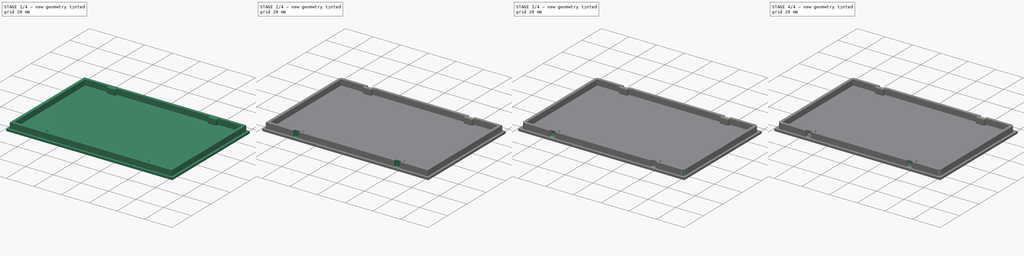
[diagram: build sequence overview — one tinted view per stage of 4, left to right]
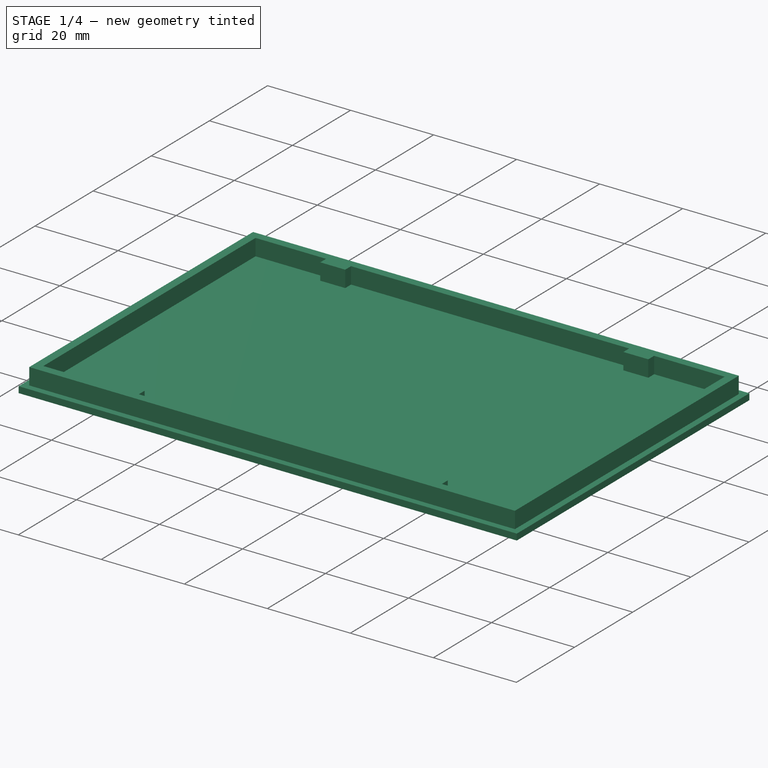
[diagram: stage 1 of 4 — iso view after this stage's code; geometry added in this stage tinted green]
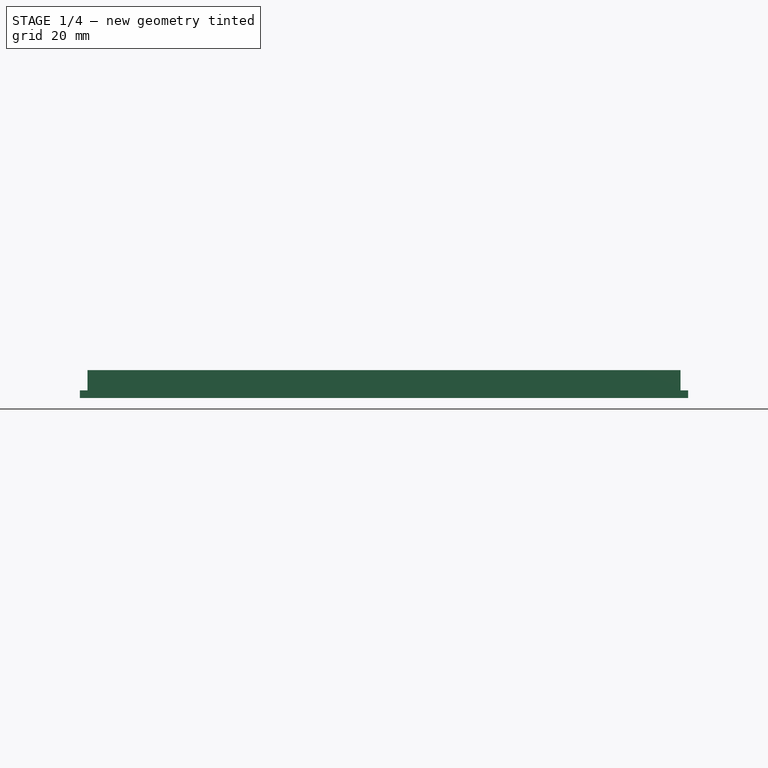
[diagram: stage 1 of 4 — front view after this stage's code; geometry added in this stage tinted green]
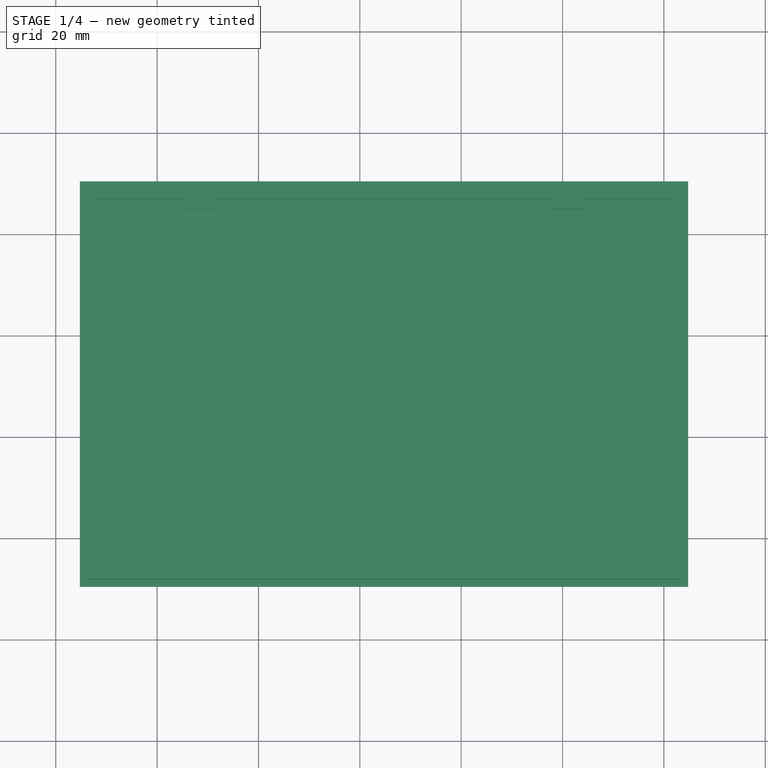
[diagram: stage 1 of 4 — top view after this stage's code; geometry added in this stage tinted green]
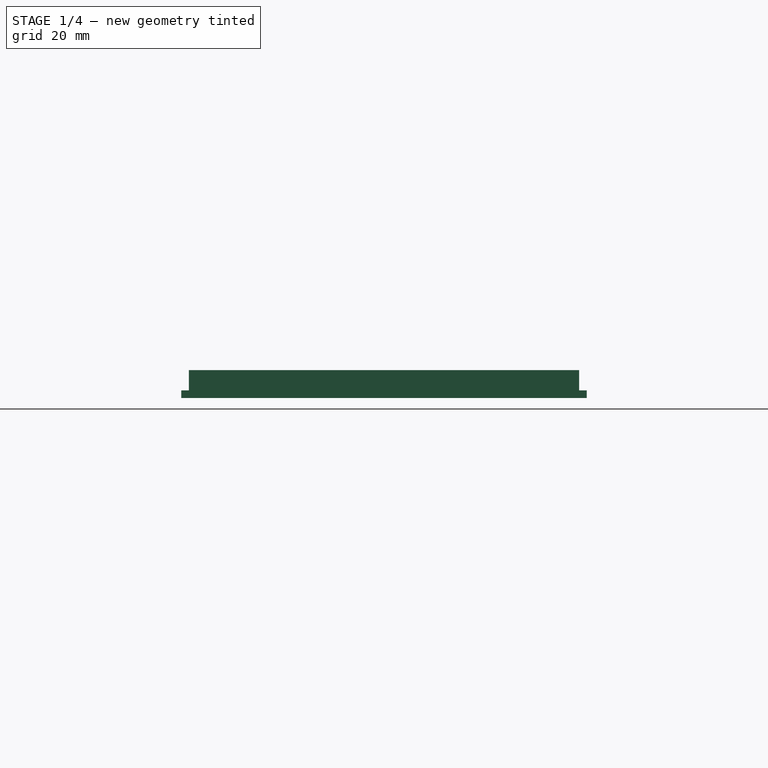
[diagram: stage 1 of 4 — right view after this stage's code; geometry added in this stage tinted green]
FCSTD DOCUMENT  (FreeCAD 0.19R24267 +99 (Git))
Label: tapa
License: All rights reserved
LicenseURL: http://en.wikipedia.org/wiki/All_rights_reserved
objects: Sketcher::SketchObject×9, PartDesign::Pocket×7, PartDesign::Fillet×4, PartDesign::Pad×2, PartDesign::Body×1
note: 36 computed .brp shape members not serialized (recipe doc carries the construction recipe); baked Part::Feature solids carry a one-line shape summary decoded from their .brp

FEATURE [Sketcher::SketchObject] Sketch
  FullyConstrained = false
  MapMode = 5
  Support = -> [XY_Plane]
  sketch-geometry (4):
    g0: LineSegment StartX=-35.2307 StartY=50.4497 StartZ=0 EndX=84.7693 EndY=50.4497 EndZ=0
    g1: LineSegment StartX=84.7693 StartY=50.4497 StartZ=0 EndX=84.7693 EndY=-29.5503 EndZ=0
    g2: LineSegment StartX=84.7693 StartY=-29.5503 StartZ=0 EndX=-35.2307 EndY=-29.5503 EndZ=0
    g3: LineSegment StartX=-35.2307 StartY=-29.5503 StartZ=0 EndX=-35.2307 EndY=50.4497 EndZ=0
  constraints (10):
    c: Coincident(g0,g1)
    c: Coincident(g1,g2)
    c: Coincident(g2,g3)
    c: Coincident(g3,g0)
    c: Horizontal(g0)
    c: Horizontal(g2)
    c: Vertical(g1)
    c: Vertical(g3)
    c: DistanceX(g2,g2) = 120
    c: DistanceY(g3,g3) = 80
FEATURE [PartDesign::Pad] Pad
  Direction = (1,1,1)
  Length = 1.5
  Length2 = 100
  Profile = -> Sketch
  Type = 0
FEATURE [Sketcher::SketchObject] Sketch001
  ExternalGeometry = -> [Pad]
  FullyConstrained = true
  MapMode = 5
  Placement = pos=(0,0,1.5) rot=(0,0,1;0rad)
  Support = -> [Pad]
  sketch-geometry (4):
    g0: LineSegment StartX=-33.7307 StartY=48.9497 StartZ=0 EndX=83.2693 EndY=48.9497 EndZ=0
    g1: LineSegment StartX=83.2693 StartY=48.9497 StartZ=0 EndX=83.2693 EndY=-28.0503 EndZ=0
    g2: LineSegment StartX=83.2693 StartY=-28.0503 StartZ=0 EndX=-33.7307 EndY=-28.0503 EndZ=0
    g3: LineSegment StartX=-33.7307 StartY=-28.0503 StartZ=0 EndX=-33.7307 EndY=48.9497 EndZ=0
  constraints (12):
    c: Coincident(g0,g1)
    c: Coincident(g1,g2)
    c: Coincident(g2,g3)
    c: Coincident(g3,g0)
    c: Horizontal(g0)
    c: Horizontal(g2)
    c: Vertical(g1)
    c: Vertical(g3)
    c: DistanceX(g-3,g0) = 1.5
    c: DistanceY(g0,g-3) = 1.5
    c: DistanceY(g-4,g1) = 1.5
    c: DistanceX(g1,g-4) = 1.5
FEATURE [PartDesign::Pad] Pad001
  BaseFeature = -> Pad
  Direction = (1,1,1)
  Length = 4
  Length2 = 100
  Profile = -> Sketch001
  Type = 0
FEATURE [Sketcher::SketchObject] Sketch002
  ExternalGeometry = -> [Pad001]
  FullyConstrained = false
  MapMode = 5
  Placement = pos=(0,0,5.5) rot=(0,0,1;0rad)
  Support = -> [Pad001]
  sketch-geometry (20):
    g0: LineSegment StartX=81.2693 StartY=46.9662 StartZ=0 EndX=81.2693 EndY=-26.0503 EndZ=0
    g1: LineSegment StartX=-31.7307 StartY=-26.0503 StartZ=0 EndX=-31.7307 EndY=46.9497 EndZ=0
    g2: LineSegment StartX=-14.7307 StartY=-24.0503 StartZ=0 EndX=-8.73069 EndY=-24.0503 EndZ=0
    g3: LineSegment StartX=-8.73069 StartY=-24.0503 StartZ=0 EndX=-8.73069 EndY=-26.0503 EndZ=0
    g4: LineSegment StartX=-14.7307 StartY=-26.0503 StartZ=0 EndX=-14.7307 EndY=-24.0503 EndZ=0
    g5: LineSegment StartX=58.2693 StartY=-24.0503 StartZ=0 EndX=64.2693 EndY=-24.0503 EndZ=0
    g6: LineSegment StartX=64.2693 StartY=-24.0503 StartZ=0 EndX=64.2693 EndY=-26.0503 EndZ=0
    g7: LineSegment StartX=58.2693 StartY=-26.0503 StartZ=0 EndX=58.2693 EndY=-24.0503 EndZ=0
    g8: LineSegment StartX=58.2693 StartY=46.9497 StartZ=0 EndX=58.2693 EndY=44.9662 EndZ=0
    g9: LineSegment StartX=58.2693 StartY=44.9662 StartZ=0 EndX=64.2693 EndY=44.9662 EndZ=0
    g10: LineSegment StartX=64.2693 StartY=44.9662 StartZ=0 EndX=64.2693 EndY=46.9662 EndZ=0
    g11: LineSegment StartX=-8.73069 StartY=46.9497 StartZ=0 EndX=-8.73069 EndY=44.9497 EndZ=0
    g12: LineSegment StartX=-8.73069 StartY=44.9497 StartZ=0 EndX=-14.7307 EndY=44.9497 EndZ=0
    g13: LineSegment StartX=-14.7307 StartY=44.9497 StartZ=0 EndX=-14.7307 EndY=46.9497 EndZ=0
    g14: LineSegment StartX=-31.7307 StartY=-26.0503 StartZ=0 EndX=-14.7307 EndY=-26.0503 EndZ=0
    g15: LineSegment StartX=-8.73069 StartY=-26.0503 StartZ=0 EndX=58.2693 EndY=-26.0503 EndZ=0
    g16: LineSegment StartX=64.2693 StartY=-26.0503 StartZ=0 EndX=81.2693 EndY=-26.0503 EndZ=0
    g17: LineSegment StartX=-31.7307 StartY=46.9497 StartZ=0 EndX=-14.7307 EndY=46.9497 EndZ=0
    g18: LineSegment StartX=-8.73069 StartY=46.9497 StartZ=0 EndX=58.2693 EndY=46.9497 EndZ=0
    g19: LineSegment StartX=64.2693 StartY=46.9662 StartZ=0 EndX=81.2693 EndY=46.9662 EndZ=0
  constraints (58):
    c: Vertical(g0)
    c: Vertical(g1)
    c: DistanceY(g1,g-3) = 2
    c: DistanceX(g-3,g1) = 2
    c: DistanceX(g0,g-4) = 2
    c: DistanceY(g-4,g0) = 2
    c: Coincident(g2,g3)
    c: Coincident(g4,g2)
    c: Horizontal(g2)
    c: Vertical(g3)
    c: Vertical(g4)
    c: DistanceY(g3,g3) = 2
    c: DistanceX(g2,g2) = 6
    c: Coincident(g5,g6)
    c: Coincident(g7,g5)
    c: Horizontal(g5)
    c: Vertical(g6)
    c: Vertical(g7)
    c: Equal(g3,g6) = 1.5
    c: Equal(g2,g5) = 5
    c: Coincident(g8,g9)
    c: Coincident(g9,g10)
    c: Horizontal(g9)
    c: Vertical(g8)
    c: Vertical(g10)
    c: Coincident(g11,g12)
    c: Coincident(g12,g13)
    c: Horizontal(g12)
    c: Vertical(g11)
    c: Vertical(g13)
    c: DistanceX(g-4,g4) = 19
    c: DistanceY(g1,g4) = 0
    c: DistanceX(g6,g-4) = 19
    c: DistanceY(g0,g6) = 0
    c: DistanceY(g10,g10) = 2
    c: DistanceX(g9,g9) = 6
    c: DistanceX(g10,g-3) = 19
    c: DistanceY(g10,g0) = 0
    c: DistanceY(g11,g11) = 2
    c: DistanceX(g12,g12) = 6
    c: DistanceX(g-3,g13) = 19
    c: DistanceY(g13,g1) = 0
    c: Coincident(g14,g1)
    c: Coincident(g15,g3)
    c: Coincident(g15,g7)
    c: Horizontal(g15)
    c: Coincident(g16,g6)
    c: Coincident(g16,g0)
    c: Coincident(g17,g1)
    c: Coincident(g17,g13)
    c: Coincident(g18,g11)
    c: Coincident(g18,g8)
    c: Horizontal(g18)
    c: Coincident(g19,g10)
    c: Coincident(g19,g0)
    c: Coincident(g14,g4)
    c: DistanceY(g-4,g7) = 2
    c: DistanceY(g8,g-3) = 2
FEATURE [PartDesign::Pocket] Pocket
  BaseFeature = -> Pad001
  Length = 4
  Length2 = 100
  Profile = -> Sketch002
  Type = 0
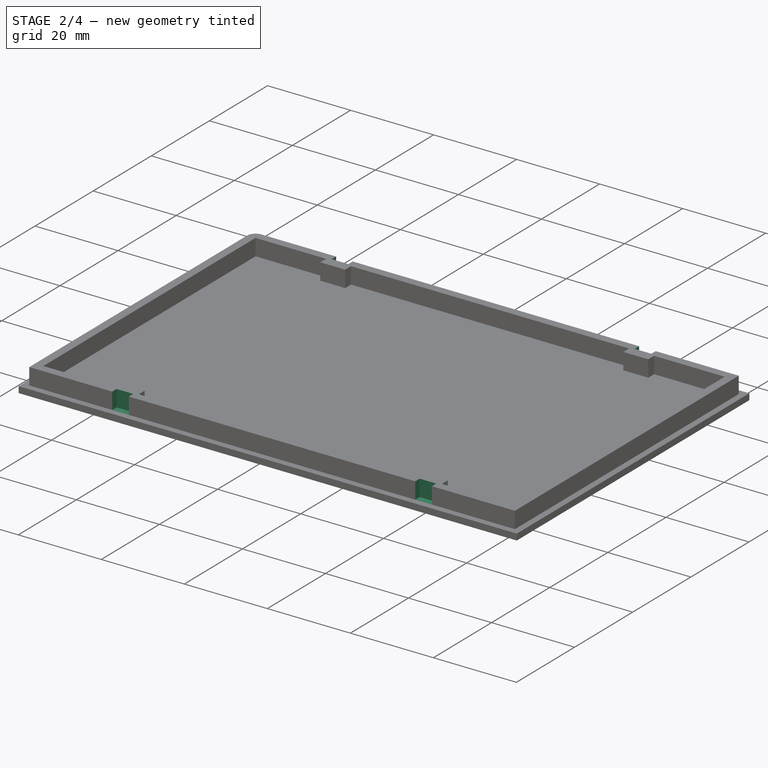
[diagram: stage 2 of 4 — iso view after this stage's code; geometry added in this stage tinted green]
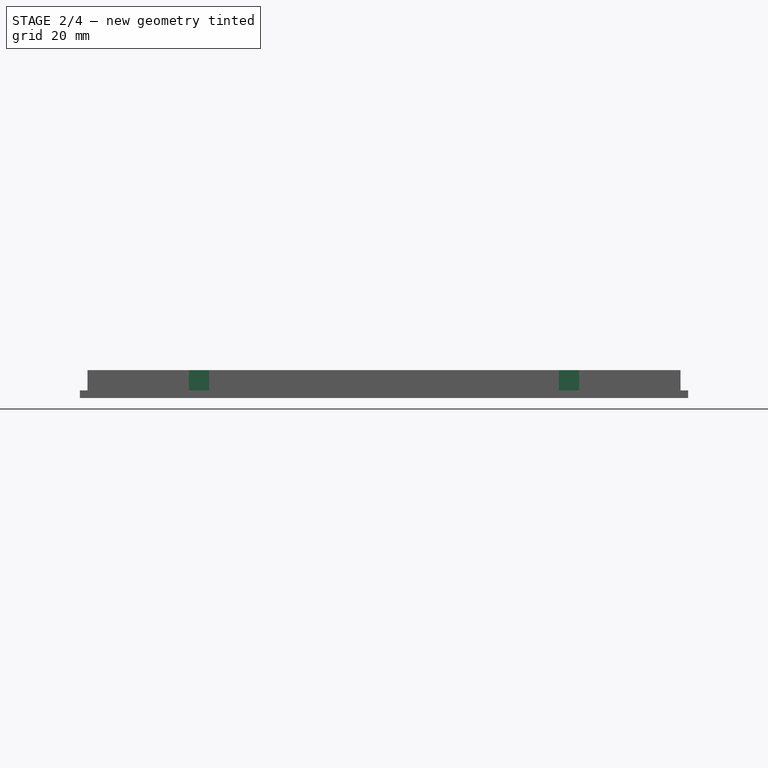
[diagram: stage 2 of 4 — front view after this stage's code; geometry added in this stage tinted green]
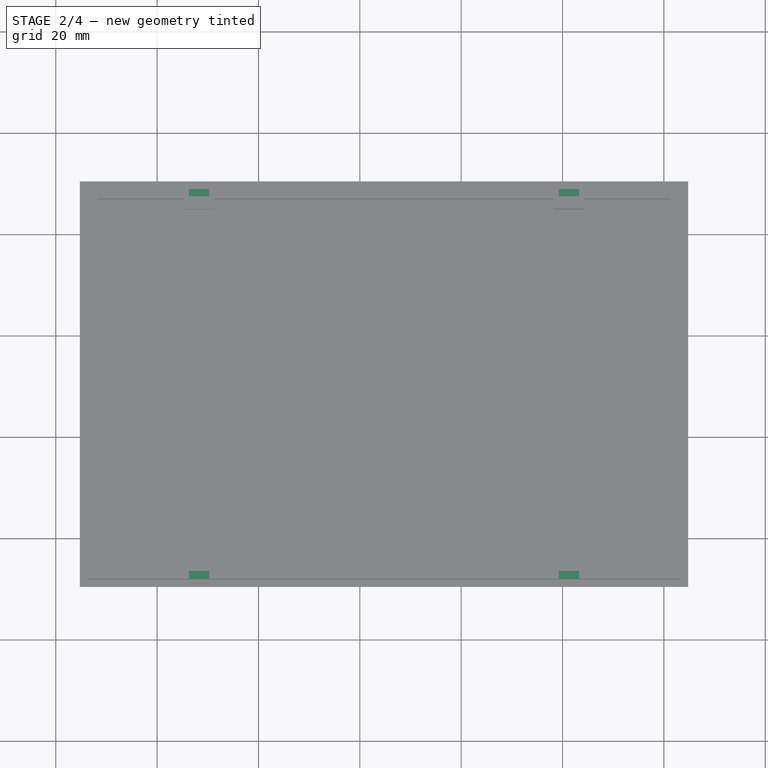
[diagram: stage 2 of 4 — top view after this stage's code; geometry added in this stage tinted green]
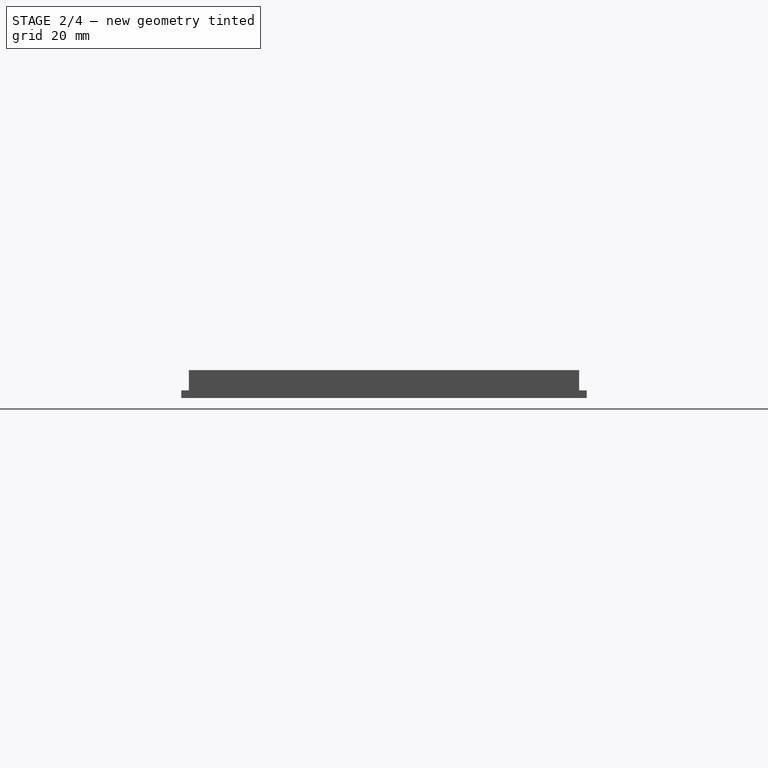
[diagram: stage 2 of 4 — right view after this stage's code; geometry added in this stage tinted green]
FEATURE [Sketcher::SketchObject] Sketch003
  ExternalGeometry = -> [Pocket]
  FullyConstrained = true
  MapMode = 5
  Placement = pos=(0,-28.0503,0) rot=(1,0,0;1.5708rad)
  Support = -> [Pocket]
  sketch-geometry (8):
    g0: LineSegment StartX=-13.7307 StartY=5.5 StartZ=0 EndX=-9.73069 EndY=5.5 EndZ=0
    g1: LineSegment StartX=-9.73069 StartY=5.5 StartZ=0 EndX=-9.73069 EndY=1.5 EndZ=0
    g2: LineSegment StartX=-9.73069 StartY=1.5 StartZ=0 EndX=-13.7307 EndY=1.5 EndZ=0
    g3: LineSegment StartX=-13.7307 StartY=1.5 StartZ=0 EndX=-13.7307 EndY=5.5 EndZ=0
    g4: LineSegment StartX=59.2693 StartY=5.5 StartZ=0 EndX=63.2693 EndY=5.5 EndZ=0
    g5: LineSegment StartX=63.2693 StartY=5.5 StartZ=0 EndX=63.2693 EndY=1.5 EndZ=0
    g6: LineSegment StartX=63.2693 StartY=1.5 StartZ=0 EndX=59.2693 EndY=1.5 EndZ=0
    g7: LineSegment StartX=59.2693 StartY=1.5 StartZ=0 EndX=59.2693 EndY=5.5 EndZ=0
  constraints (24):
    c: Coincident(g0,g1)
    c: Coincident(g1,g2)
    c: Coincident(g2,g3)
    c: Coincident(g3,g0)
    c: Horizontal(g0)
    c: Horizontal(g2)
    c: Vertical(g1)
    c: Vertical(g3)
    c: Coincident(g4,g5)
    c: Coincident(g5,g6)
    c: Coincident(g6,g7)
    c: Coincident(g7,g4)
    c: Horizontal(g4)
    c: Horizontal(g6)
    c: Vertical(g5)
    c: Vertical(g7)
    c: DistanceY(g1,g1) = 4
    c: DistanceX(g0,g0) = 4
    c: DistanceX(g-3,g2) = 20
    c: DistanceY(g-3,g2) = 0
    c: DistanceY(g5,g5) = 4
    c: DistanceX(g4,g4) = 4
    c: DistanceX(g5,g-4) = 20
    c: DistanceY(g-4,g5) = 0
FEATURE [PartDesign::Pocket] Pocket001
  BaseFeature = -> Pocket
  Length = 1.5
  Length2 = 100
  Profile = -> Sketch003
  Type = 0
FEATURE [Sketcher::SketchObject] Sketch004
  ExternalGeometry = -> [Pocket001]
  FullyConstrained = true
  MapMode = 5
  Placement = pos=(0,48.9497,0) rot=(0,0.707107,0.707107;3.14159rad)
  Support = -> [Pocket001]
  sketch-geometry (8):
    g0: LineSegment StartX=-63.2693 StartY=5.5 StartZ=0 EndX=-59.2693 EndY=5.5 EndZ=0
    g1: LineSegment StartX=-59.2693 StartY=5.5 StartZ=0 EndX=-59.2693 EndY=1.5 EndZ=0
    g2: LineSegment StartX=-59.2693 StartY=1.5 StartZ=0 EndX=-63.2693 EndY=1.5 EndZ=0
    g3: LineSegment StartX=-63.2693 StartY=1.5 StartZ=0 EndX=-63.2693 EndY=5.5 EndZ=0
    g4: LineSegment StartX=9.73069 StartY=5.5 StartZ=0 EndX=13.7307 EndY=5.5 EndZ=0
    g5: LineSegment StartX=13.7307 StartY=5.5 StartZ=0 EndX=13.7307 EndY=1.5 EndZ=0
    g6: LineSegment StartX=13.7307 StartY=1.5 StartZ=0 EndX=9.73069 EndY=1.5 EndZ=0
    g7: LineSegment StartX=9.73069 StartY=1.5 StartZ=0 EndX=9.73069 EndY=5.5 EndZ=0
  constraints (24):
    c: Coincident(g0,g1)
    c: Coincident(g1,g2)
    c: Coincident(g2,g3)
    c: Coincident(g3,g0)
    c: Horizontal(g0)
    c: Horizontal(g2)
    c: Vertical(g1)
    c: Vertical(g3)
    c: Coincident(g4,g5)
    c: Coincident(g5,g6)
    c: Coincident(g6,g7)
    c: Coincident(g7,g4)
    c: Horizontal(g4)
    c: Horizontal(g6)
    c: Vertical(g5)
    c: Vertical(g7)
    c: DistanceY(g1,g1) = 4
    c: DistanceX(g0,g0) = 4
    c: DistanceX(g-3,g2) = 20
    c: DistanceY(g-3,g2) = 0
    c: DistanceY(g5,g5) = 4
    c: DistanceX(g4,g4) = 4
    c: DistanceX(g5,g-4) = 20
    c: DistanceY(g-4,g5) = 0
FEATURE [PartDesign::Pocket] Pocket002
  BaseFeature = -> Pocket001
  Length = 1.5
  Length2 = 100
  Profile = -> Sketch004
  Type = 0
FEATURE [PartDesign::Fillet] Fillet
  Base = -> Pocket002 [Edge27]
  BaseFeature = -> Pocket002
  Radius = 2
  SupportTransform = false
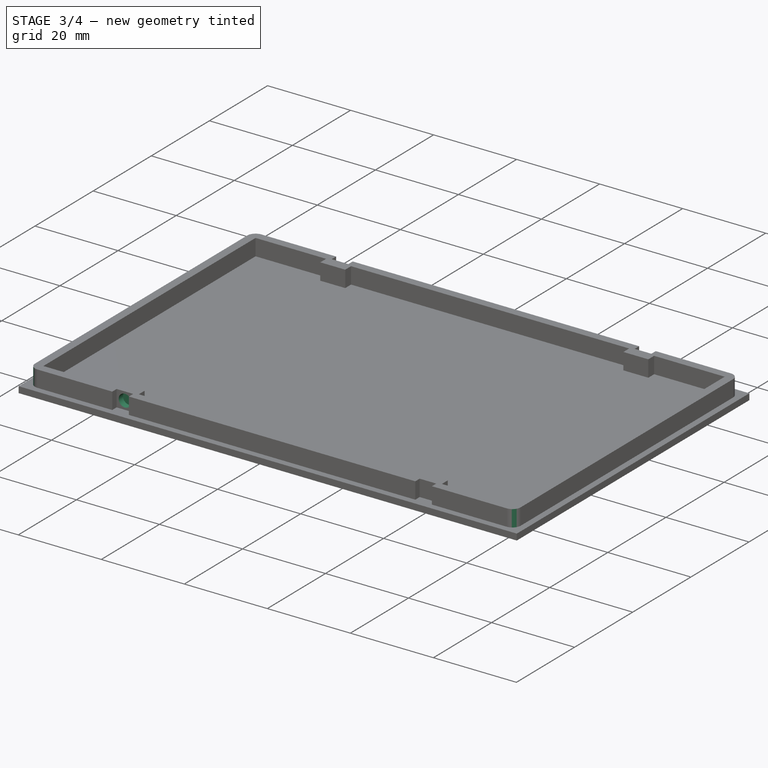
[diagram: stage 3 of 4 — iso view after this stage's code; geometry added in this stage tinted green]
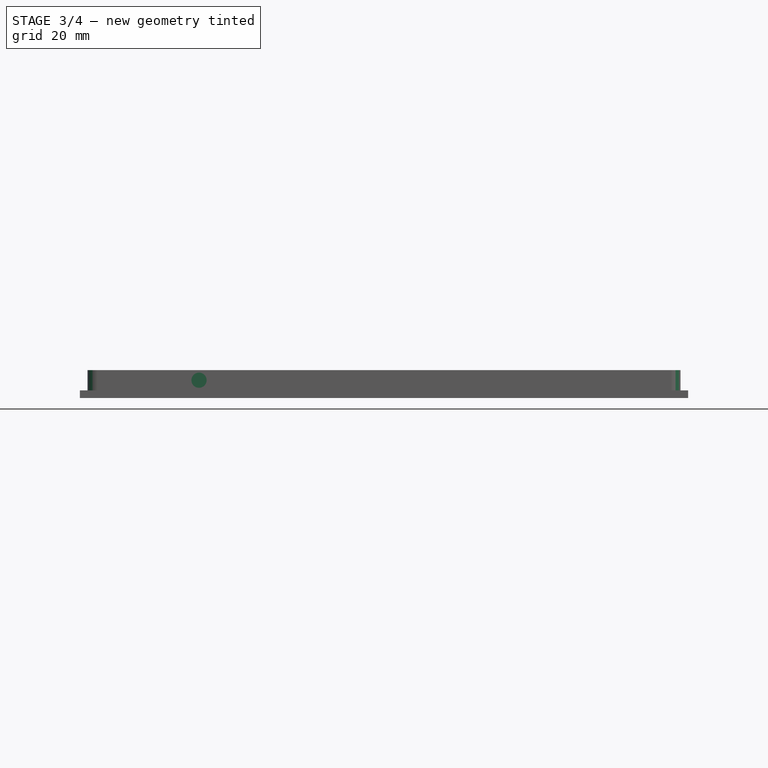
[diagram: stage 3 of 4 — front view after this stage's code; geometry added in this stage tinted green]
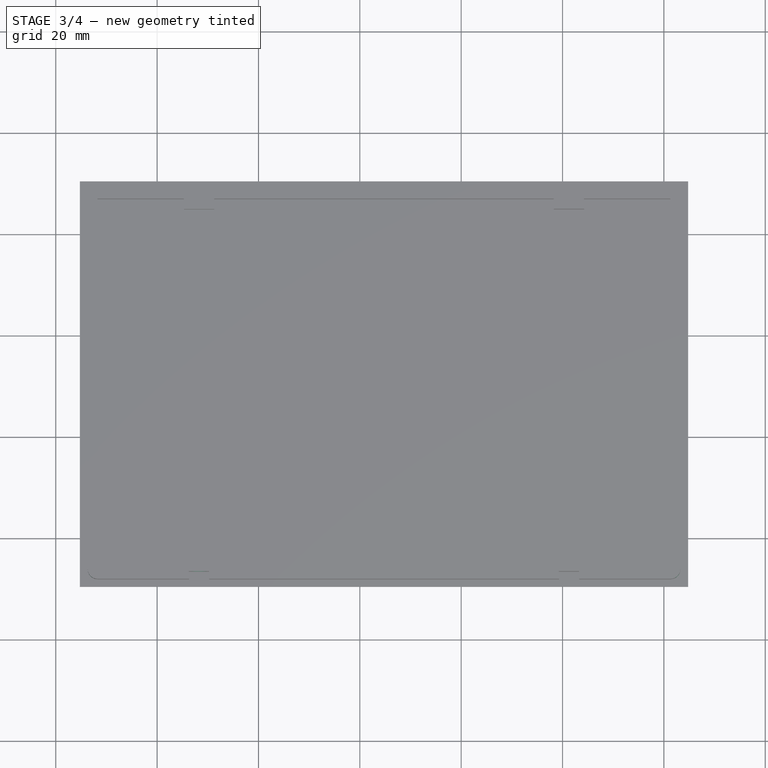
[diagram: stage 3 of 4 — top view after this stage's code; geometry added in this stage tinted green]
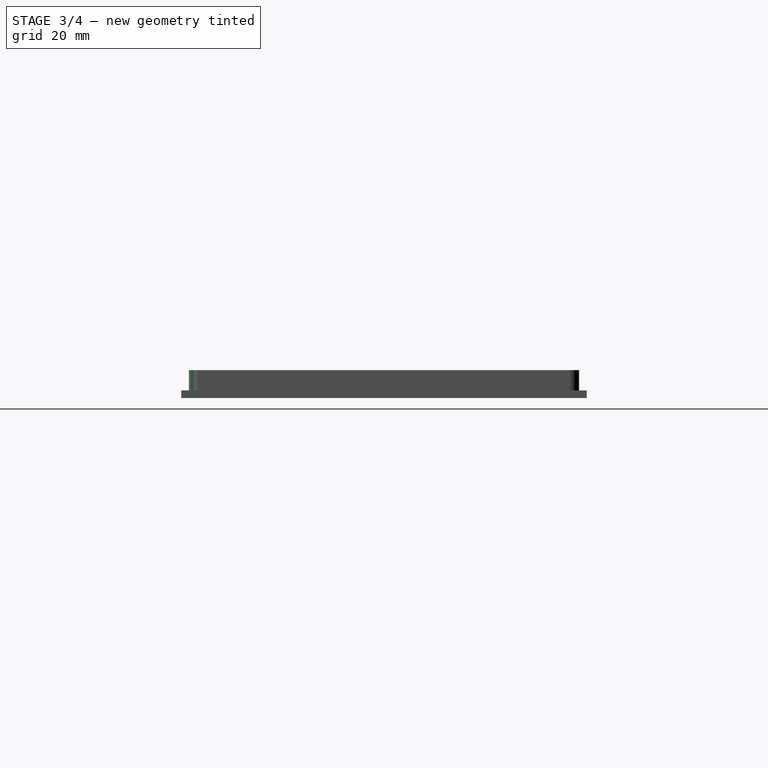
[diagram: stage 3 of 4 — right view after this stage's code; geometry added in this stage tinted green]
FEATURE [PartDesign::Fillet] Fillet001
  Base = -> Fillet [Edge39]
  BaseFeature = -> Fillet
  Radius = 2
  SupportTransform = false
FEATURE [PartDesign::Fillet] Fillet002
  Base = -> Fillet001 [Edge27]
  BaseFeature = -> Fillet001
  Radius = 2
  SupportTransform = false
FEATURE [PartDesign::Fillet] Fillet003
  Base = -> Fillet002 [Edge49]
  BaseFeature = -> Fillet002
  Radius = 2
  SupportTransform = false
FEATURE [Sketcher::SketchObject] Sketch005
  ExternalGeometry = -> [Fillet003]
  FullyConstrained = true
  MapMode = 5
  Placement = pos=(0,-26.5503,0) rot=(1,0,0;1.5708rad)
  Support = -> [Fillet003]
  sketch-geometry (1):
    g0: Circle CenterX=-11.7307 CenterY=3.5 CenterZ=0 NormalX=0 NormalY=0 NormalZ=1 AngleXU=0 Radius=1.5
  constraints (3):
    c: Diameter(g0) = 3
    c: DistanceX(g-4,g0) = 2
    c: DistanceY(g0,g-4) = 2
FEATURE [PartDesign::Pocket] Pocket003
  BaseFeature = -> Fillet003
  Length = 1.5
  Length2 = 100
  Profile = -> Sketch005
  Type = 0
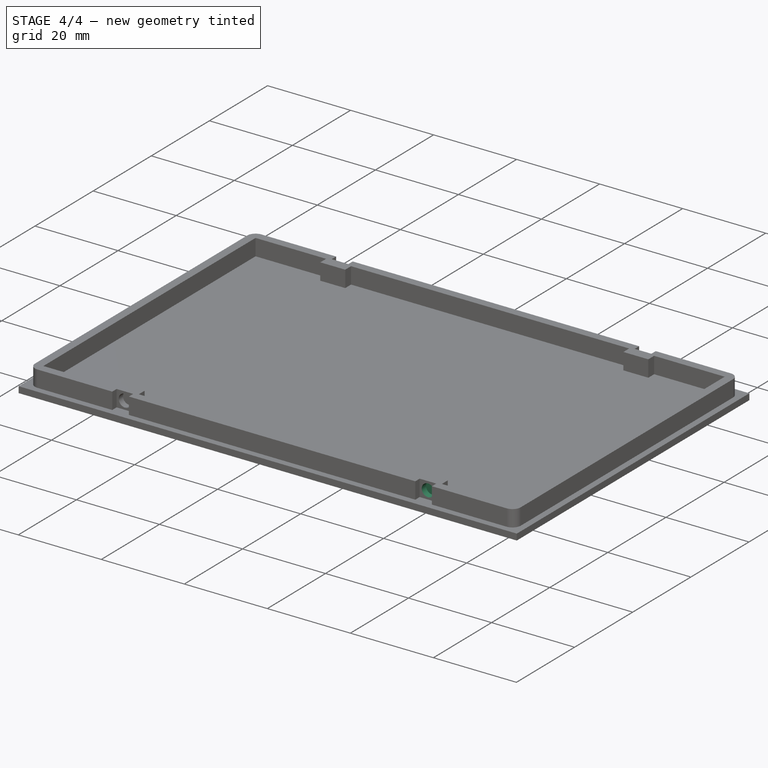
[diagram: stage 4 of 4 — iso view after this stage's code; geometry added in this stage tinted green]
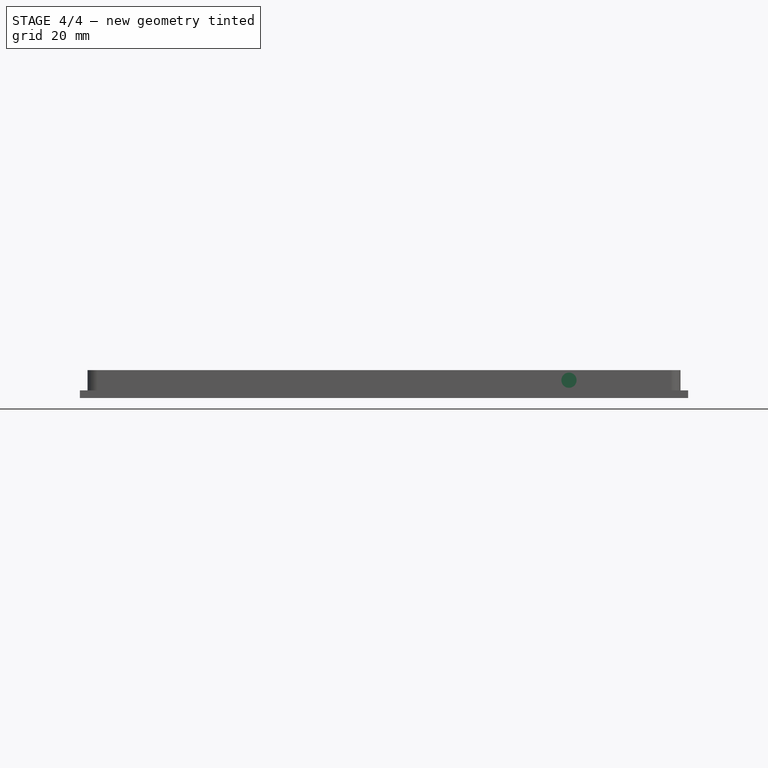
[diagram: stage 4 of 4 — front view after this stage's code; geometry added in this stage tinted green]
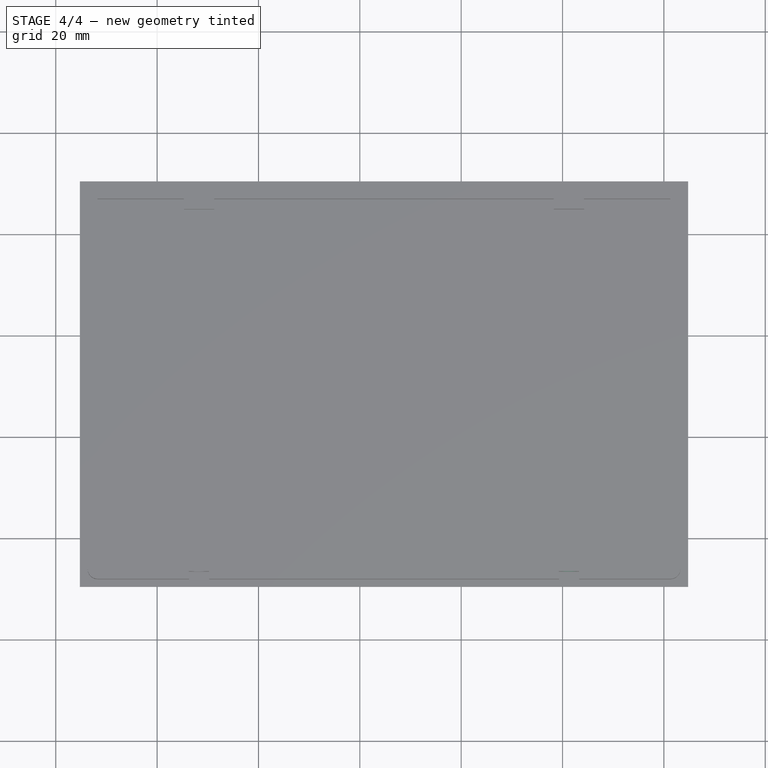
[diagram: stage 4 of 4 — top view after this stage's code; geometry added in this stage tinted green]
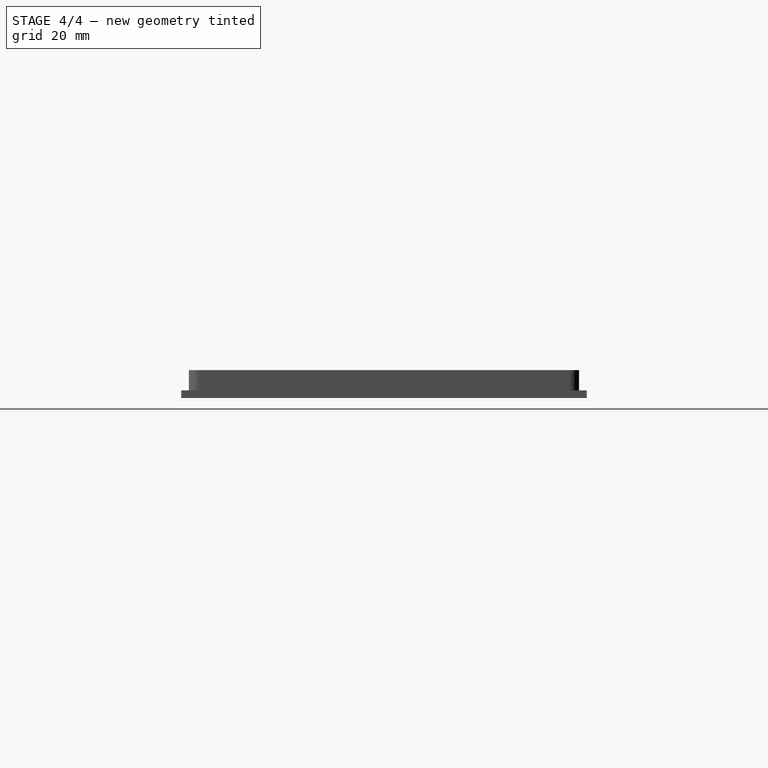
[diagram: stage 4 of 4 — right view after this stage's code; geometry added in this stage tinted green]
FEATURE [Sketcher::SketchObject] Sketch006
  ExternalGeometry = -> [Pocket003]
  FullyConstrained = true
  MapMode = 5
  Placement = pos=(0,-26.5503,0) rot=(1,0,0;1.5708rad)
  Support = -> [Pocket003]
  sketch-geometry (1):
    g0: Circle CenterX=61.2693 CenterY=3.5 CenterZ=0 NormalX=0 NormalY=0 NormalZ=1 AngleXU=0 Radius=1.5
  constraints (3):
    c: Diameter(g0) = 3
    c: DistanceY(g0,g-3) = 2
    c: DistanceX(g-3,g0) = 2
FEATURE [PartDesign::Pocket] Pocket004
  BaseFeature = -> Pocket003
  Length = 1.5
  Length2 = 100
  Profile = -> Sketch006
  Type = 0
FEATURE [Sketcher::SketchObject] Sketch007
  ExternalGeometry = -> [Pocket004]
  FullyConstrained = true
  MapMode = 5
  Placement = pos=(0,47.4497,0) rot=(0,0.707107,0.707107;3.14159rad)
  Support = -> [Pocket004]
  sketch-geometry (1):
    g0: Circle CenterX=-61.2693 CenterY=3.5 CenterZ=0 NormalX=0 NormalY=0 NormalZ=1 AngleXU=0 Radius=1.5
  constraints (3):
    c: Diameter(g0) = 3
    c: DistanceX(g-3,g0) = 2
    c: DistanceY(g0,g-3) = 2
FEATURE [PartDesign::Pocket] Pocket005
  BaseFeature = -> Pocket004
  Length = 1.5
  Length2 = 100
  Profile = -> Sketch007
  Type = 0
FEATURE [Sketcher::SketchObject] Sketch008
  ExternalGeometry = -> [Pocket005]
  FullyConstrained = true
  MapMode = 5
  Placement = pos=(0,47.4497,0) rot=(0,0.707107,0.707107;3.14159rad)
  Support = -> [Pocket005]
  sketch-geometry (1):
    g0: Circle CenterX=11.7307 CenterY=3.5 CenterZ=0 NormalX=0 NormalY=0 NormalZ=1 AngleXU=0 Radius=1.5
  constraints (3):
    c: Diameter(g0) = 3
    c: DistanceX(g-3,g0) = 2
    c: DistanceY(g0,g-3) = 2
FEATURE [PartDesign::Pocket] Pocket006
  BaseFeature = -> Pocket005
  Length = 1.5
  Length2 = 100
  Profile = -> Sketch008
  Type = 0
FEATURE [PartDesign::Body] Body
  Group = -> [Sketch,Pad,Sketch001,Pad001,Sketch002,Pocket,Sketch003,Pocket001,Sketch004,Pocket002,Fillet,Fillet001,Fillet002,Fillet003,Sketch005,Pocket003,Sketch006,Pocket004,Sketch007,Pocket005,Sketch008,Pocket006]
  Origin = -> Origin
  Tip = -> Pocket006
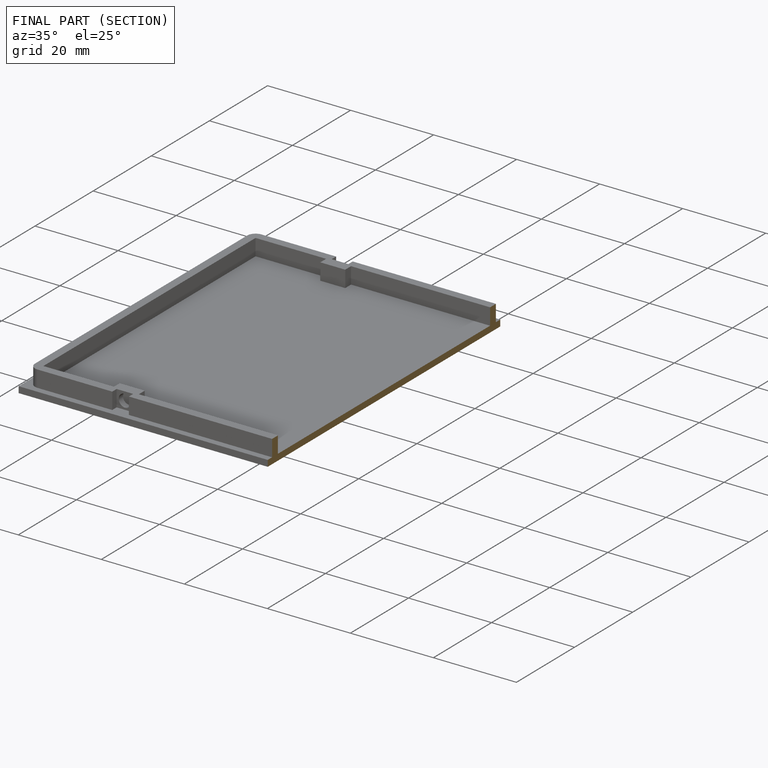
[diagram: finished part — half-section view (interior)]
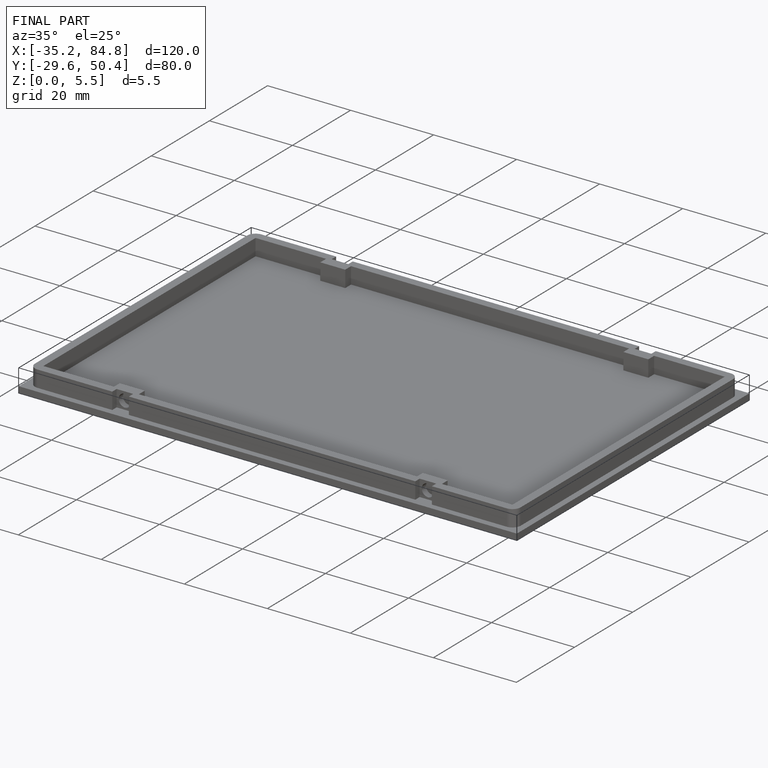
[diagram: finished part — iso view with bounding-box wireframe]
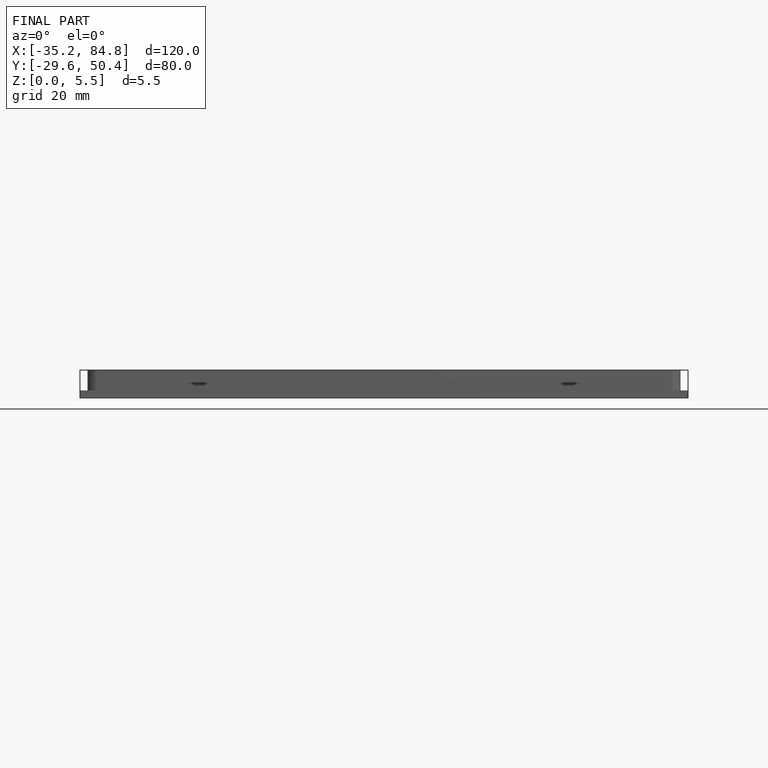
[diagram: finished part — front view with bounding-box wireframe]
